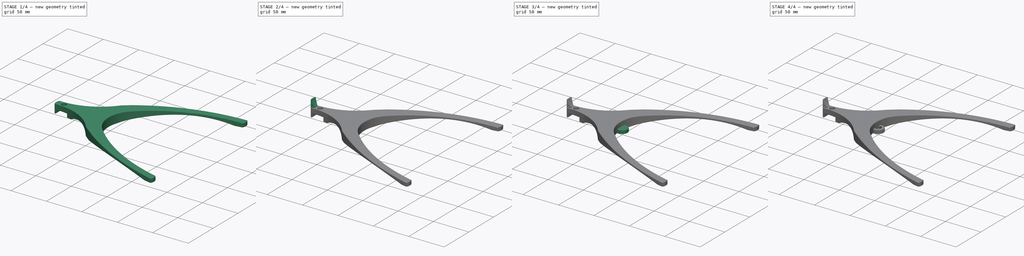
[diagram: build sequence overview — one tinted view per stage of 4, left to right]
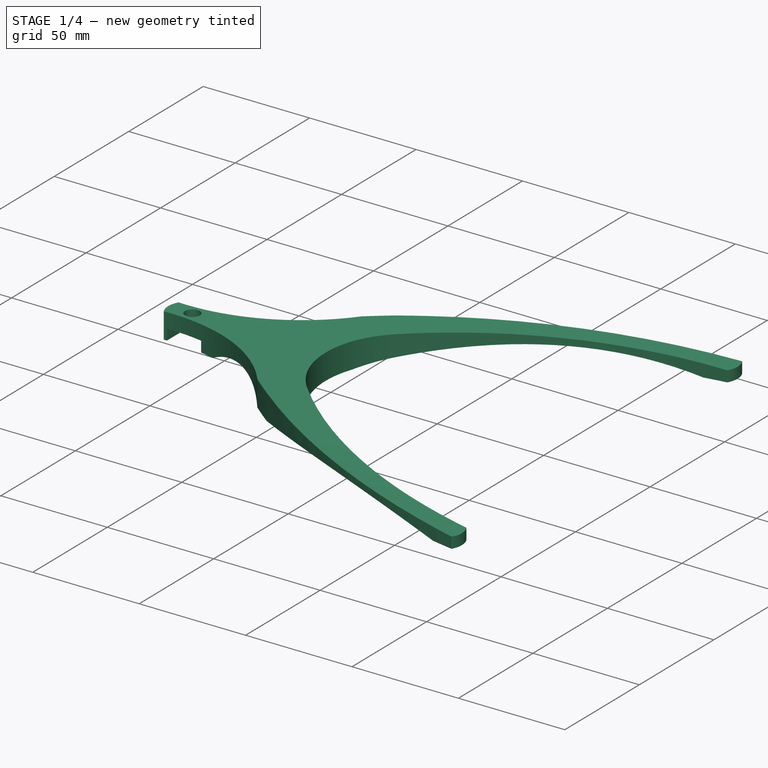
[diagram: stage 1 of 4 — iso view after this stage's code; geometry added in this stage tinted green]
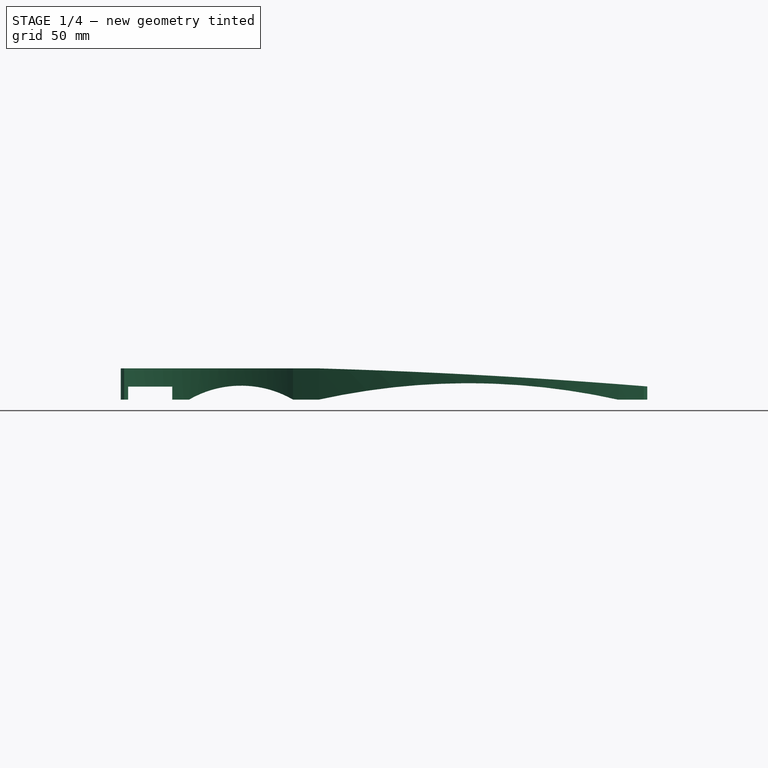
[diagram: stage 1 of 4 — front view after this stage's code; geometry added in this stage tinted green]
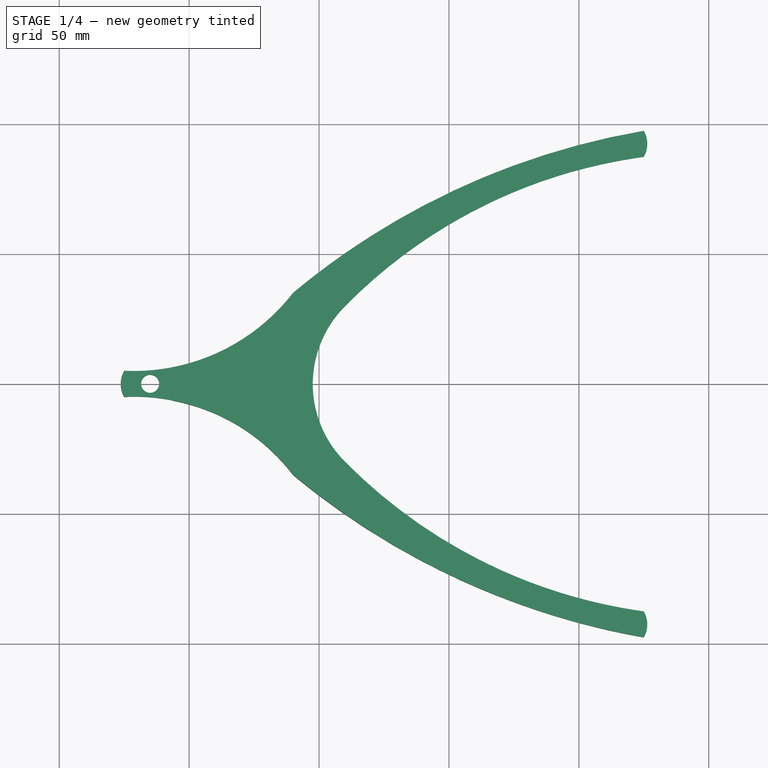
[diagram: stage 1 of 4 — top view after this stage's code; geometry added in this stage tinted green]
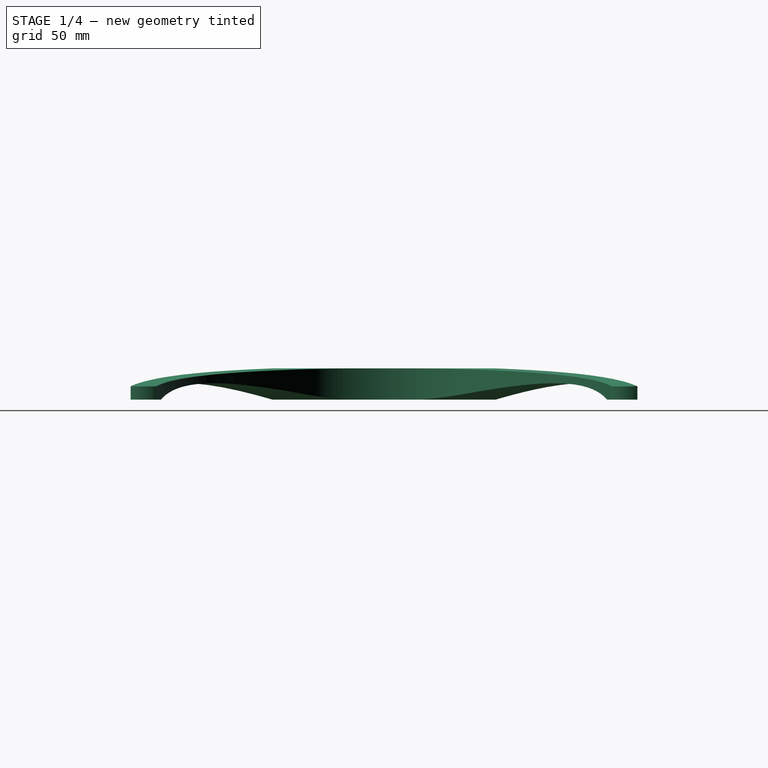
[diagram: stage 1 of 4 — right view after this stage's code; geometry added in this stage tinted green]
FCSTD DOCUMENT  (FreeCAD 0.19R20310 (Git))
Label: adaptalux_base
License: All rights reserved
LicenseURL: http://en.wikipedia.org/wiki/All_rights_reserved
objects: Sketcher::SketchObject×8, PartDesign::Pocket×5, PartDesign::Pad×3, PartDesign::Fillet×2, PartDesign::Body×2, PartDesign::PolarPattern×1, App::Part×1
note: 31 computed .brp shape members not serialized (recipe doc carries the construction recipe); baked Part::Feature solids carry a one-line shape summary decoded from their .brp

FEATURE [Sketcher::SketchObject] Sketch
  MapMode = 5
  Support = -> [XY_Plane]
  sketch-geometry (18):
    g0: GeomPoint X=-75 Y=5 Z=0
    g1: GeomPoint X=-75 Y=-5 Z=0
    g2: GeomPoint X=-10 Y=-35 Z=0
    g3: GeomPoint X=-10 Y=35 Z=0
    g4: GeomPoint X=125 Y=97.5 Z=0
    g5: GeomPoint X=125 Y=-97.5 Z=0
    g6: ArcOfCircle CenterX=-71.3147 CenterY=82.4319 CenterZ=0 NormalX=0 NormalY=0 NormalZ=1 AngleXU=0 Radius=77.5196 StartAngle=4.66483 EndAngle=5.62476
    g7: ArcOfCircle CenterX=174.127 CenterY=-185.663 CenterZ=0 NormalX=0 NormalY=0 NormalZ=1 AngleXU=0 Radius=287.393 StartAngle=1.74258 EndAngle=2.26618
    g8: ArcOfCircle CenterX=-71.3147 CenterY=-82.4319 CenterZ=0 NormalX=0 NormalY=0 NormalZ=1 AngleXU=0 Radius=77.5196 StartAngle=0.658423 EndAngle=1.61835
    g9: ArcOfCircle CenterX=174.127 CenterY=185.663 CenterZ=0 NormalX=0 NormalY=0 NormalZ=1 AngleXU=0 Radius=287.393 StartAngle=4.01701 EndAngle=4.54061
    g10: ArcOfCircle CenterX=-66.3397 CenterY=-9e-16 CenterZ=0 NormalX=0 NormalY=0 NormalZ=1 AngleXU=0 Radius=10 StartAngle=2.61799 EndAngle=3.66519
    g11: ArcOfCircle CenterX=116.34 CenterY=92.5 CenterZ=0 NormalX=0 NormalY=0 NormalZ=1 AngleXU=0 Radius=10 StartAngle=5.75959 EndAngle=6.80678
    g12: ArcOfCircle CenterX=152.196 CenterY=-110.642 CenterZ=0 NormalX=0 NormalY=0 NormalZ=1 AngleXU=0 Radius=200 StartAngle=1.7072 EndAngle=2.36169
    g13: ArcOfCircle CenterX=152.196 CenterY=110.642 CenterZ=0 NormalX=0 NormalY=0 NormalZ=1 AngleXU=0 Radius=200 StartAngle=3.9215 EndAngle=4.57599
    g14: ArcOfCircle CenterX=40 CenterY=3.8e-15 CenterZ=0 NormalX=0 NormalY=0 NormalZ=1 AngleXU=0 Radius=42.4264 StartAngle=2.35619 EndAngle=3.92699
    g15: ArcOfCircle CenterX=116.34 CenterY=-92.5 CenterZ=0 NormalX=0 NormalY=0 NormalZ=1 AngleXU=0 Radius=10 StartAngle=5.75959 EndAngle=6.80678
    g16: Circle CenterX=-65 CenterY=0 CenterZ=0 NormalX=0 NormalY=0 NormalZ=1 AngleXU=0 Radius=3.475
    g17: GeomPoint X=-76.3397 Y=0 Z=0
  constraints (47):
    c: Symmetric(g0,g1,g-1)
    c: Symmetric(g2,g3,g-1)
    c: Symmetric(g4,g5,g-1)
    c: DistanceY(g5,g4) = 195
    c: DistanceY(g2,g3) = 70
    c: DistanceY(g1,g0) = 10
    c: DistanceX(g0,g3) = 65
    c: Coincident(g6,g0)
    c: Coincident(g6,g3)
    c: Coincident(g7,g3)
    c: Coincident(g7,g4)
    c: Angle(g6) = 0.959931
    c: Angle(g7) = 0.523599
    c: DistanceX(g0,g4) = 200
    c: Angle(g8) = 0.959931
    c: Angle(g9) = 0.523599
    c: Coincident(g10,g0)
    c: Coincident(g10,g1)
    c: Angle(g10) = 1.0472
    c: Coincident(g11,g4)
    c: Vertical(g11,g4)
    c: DistanceY(g11,g4) = 10
    c: Coincident(g12,g11)
    c: DistanceX(g-1,g12) = 10
    c: Symmetric(g13,g12,g-1)
    c: Coincident(g14,g12)
    c: Coincident(g14,g13)
    c: Angle(g14) = 1.5708
    c: DistanceY(g13,g12) = 60
    c: Angle(g11) = 1.0472
    c: Coincident(g1,g8)
    c: Coincident(g8,g2)
    c: Coincident(g8,g9)
    c: Coincident(g9,g5)
    c: Radius(g12) = 200
    c: Equal(g12,g13)
    c: Vertical(g13,g5)
    c: DistanceY(g5,g13) = 10
    c: Coincident(g15,g13)
    c: Coincident(g15,g5)
    c: Equal(g11,g15)
    c: DistanceX(g0,g-1) = 75
    c: PointOnObject(g17,g10)
    c: PointOnObject(g17,g-1)
    c: PointOnObject(g16,g-1)
    c: DistanceX(g16,g-1) = 65
    c: Diameter(g16) = 6.95
FEATURE [PartDesign::Pad] Pad
  Length = 12
  Length2 = 100
  Profile = -> Sketch
  Type = 0
FEATURE [Sketcher::SketchObject] Sketch001
  MapMode = 5
  Placement = pos=(0,0,0) rot=(1,0,0;1.5708rad)
  Support = -> [XZ_Plane]
  expr: Constraints[11] = 65 - 17 / 2
  sketch-geometry (4):
    g0: LineSegment StartX=-73.5 StartY=0 StartZ=0 EndX=-73.5 EndY=5 EndZ=0
    g1: LineSegment StartX=-56.5 StartY=5 StartZ=0 EndX=-56.5 EndY=0 EndZ=0
    g2: LineSegment StartX=-56.5 StartY=0 StartZ=0 EndX=-73.5 EndY=0 EndZ=0
    g3: LineSegment StartX=-73.5 StartY=5 StartZ=0 EndX=-56.5 EndY=5 EndZ=0
  constraints (12):
    c: Coincident(g1,g2)
    c: Coincident(g2,g0)
    c: Horizontal(g2)
    c: Vertical(g0)
    c: Equal(g0,g1)
    c: DistanceY(g0,g0) = 5
    c: PointOnObject(g1,g-1)
    c: DistanceX(g0,g1) = 17
    c: Coincident(g3,g1)
    c: Coincident(g3,g0)
    c: Equal(g2,g3)
    c: DistanceX(g1,g-1) = 56.5
FEATURE [PartDesign::Pocket] Pocket
  BaseFeature = -> Pad
  Length = 5
  Length2 = 100
  Midplane = true
  Profile = -> Sketch001
  Type = 1
FEATURE [Sketcher::SketchObject] Sketch002
  MapMode = 5
  Placement = pos=(0,0,0) rot=(1,0,0;1.5708rad)
  Support = -> [XZ_Plane]
  sketch-geometry (7):
    g0: ArcOfCircle CenterX=57.5 CenterY=-259.366 CenterZ=0 NormalX=0 NormalY=0 NormalZ=1 AngleXU=0 Radius=265.663 StartAngle=1.35263 EndAngle=1.78896
    g1: LineSegment StartX=2.84e-14 StartY=-5.68e-14 StartZ=0 EndX=115 EndY=-5.68e-14 EndZ=0
    g2: LineSegment StartX=127 StartY=5 StartZ=0 EndX=127 EndY=12 EndZ=0
    g3: ArcOfCircle CenterX=-30 CenterY=-34.641 CenterZ=0 NormalX=0 NormalY=0 NormalZ=1 AngleXU=0 Radius=40 StartAngle=1.0472 EndAngle=2.0944
    g4: LineSegment StartX=-50 StartY=0 StartZ=0 EndX=-10 EndY=-7.1e-15 EndZ=0
    g5: LineSegment StartX=4.26e-14 StartY=12 StartZ=0 EndX=127 EndY=12 EndZ=0
    g6: ArcOfCircle CenterX=-70.1596 CenterY=-2416.47 CenterZ=0 NormalX=0 NormalY=0 NormalZ=1 AngleXU=0 Radius=2429.48 StartAngle=1.48955 EndAngle=1.54191
  constraints (23):
    c: Coincident(g0,g-1)
    c: PointOnObject(g0,g-1)
    c: DistanceX(g0,g0) = 115
    c: Coincident(g1,g0)
    c: Coincident(g1,g0)
    c: DistanceX(g0,g2) = 12
    c: DistanceY(g0,g2) = 5
    c: Vertical(g2)
    c: PointOnObject(g3,g-1)
    c: PointOnObject(g3,g-1)
    c: DistanceX(g3,g0) = 10
    c: DistanceX(g3,g3) = 40
    c: Angle(g3) = 1.0472
    c: Coincident(g4,g3)
    c: Coincident(g4,g3)
    c: Coincident(g5,g2)
    c: Horizontal(g5)
    c: Coincident(g6,g2)
    c: DistanceY(g0,g6) = 12
    c: Coincident(g5,g6)
    c: Angle(g6) = 0.0523599
    c: PointOnObject(g5,g-2)
    c: Angle(g0) = 0.436332
FEATURE [PartDesign::Pocket] Pocket001
  BaseFeature = -> Pocket
  Length = 5
  Length2 = 100
  Midplane = true
  Profile = -> Sketch002
  Type = 1
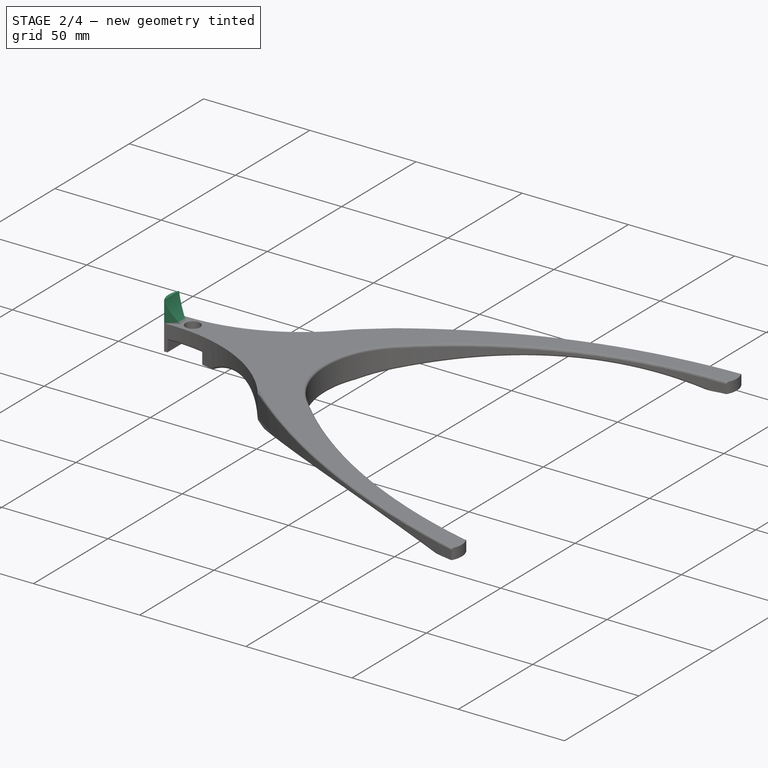
[diagram: stage 2 of 4 — iso view after this stage's code; geometry added in this stage tinted green]
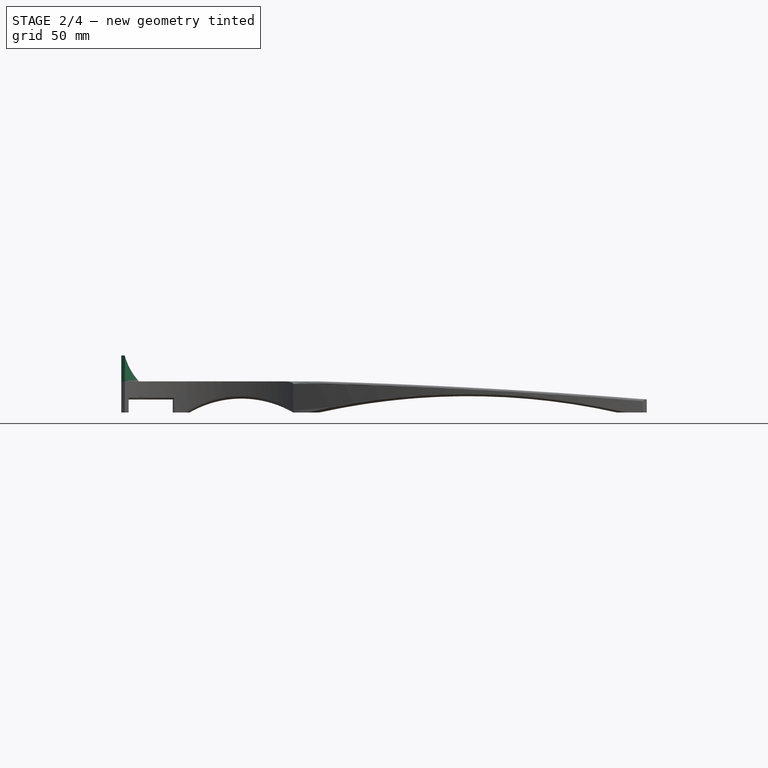
[diagram: stage 2 of 4 — front view after this stage's code; geometry added in this stage tinted green]
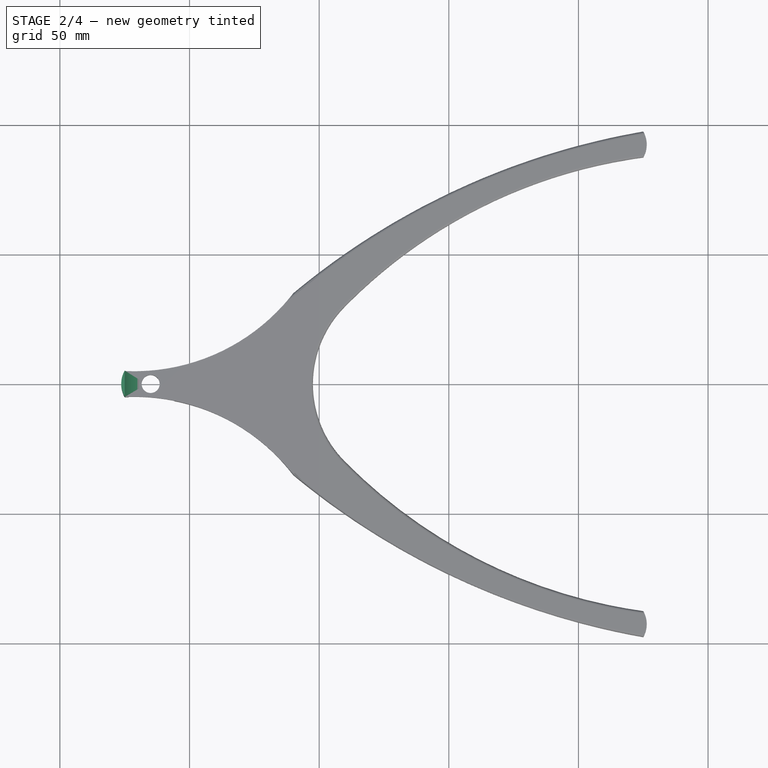
[diagram: stage 2 of 4 — top view after this stage's code; geometry added in this stage tinted green]
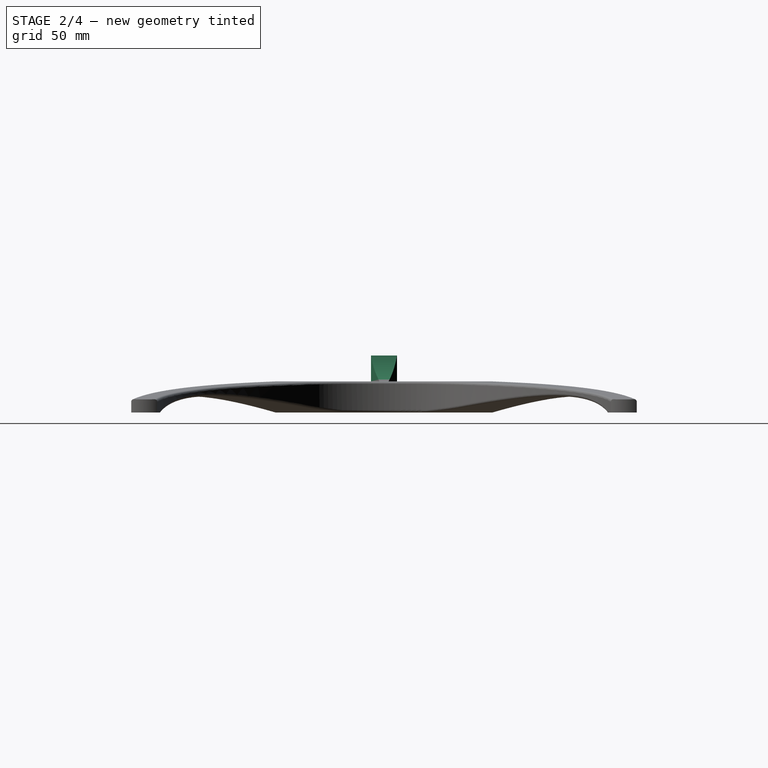
[diagram: stage 2 of 4 — right view after this stage's code; geometry added in this stage tinted green]
FEATURE [PartDesign::Body] Body005
  Group = -> [Sketch017,Pad010,Fillet004,Sketch018,Pocket003,Sketch019,Pocket004,PolarPattern002]
  Origin = -> Origin008
  Tip = -> PolarPattern002
FEATURE [App::Part] Part002  label="tapa_tornillo"
  Group = -> [Body005]
  Origin = -> Origin007
  Placement = pos=(50,0,0) rot=(0,0,1;0rad)
FEATURE [Sketcher::SketchObject] Sketch020
  ExternalGeometry = -> [Pocket001]
  MapMode = 5
  Placement = pos=(0,0,12) rot=(0,0,1;0rad)
  Support = -> [Pocket001]
  sketch-geometry (4):
    g0: LineSegment StartX=-75 StartY=5 StartZ=0 EndX=-69.5 EndY=1.75 EndZ=0
    g1: LineSegment StartX=-69.5 StartY=1.75 StartZ=0 EndX=-69.5 EndY=-1.75 EndZ=0
    g2: LineSegment StartX=-69.5 StartY=-1.75 StartZ=0 EndX=-75 EndY=-5 EndZ=0
    g3: ArcOfCircle CenterX=-66.3397 CenterY=-3.238e-13 CenterZ=0 NormalX=0 NormalY=0 NormalZ=1 AngleXU=0 Radius=10 StartAngle=2.61799 EndAngle=3.66519
  constraints (10):
    c: Coincident(g0,g1)
    c: Coincident(g1,g2)
    c: Symmetric(g1,g0,g-1)
    c: DistanceY(g1,g1) = 3.5
    c: DistanceX(g1,g-1) = 69.5
    c: Angle(g3) = 1.0472
    c: Coincident(g3,g2)
    c: Coincident(g2,g-3)
    c: Coincident(g3,g-4)
    c: Coincident(g3,g0)
FEATURE [Sketcher::SketchObject] Sketch021
  MapMode = 5
  Placement = pos=(0,0,0) rot=(1,0,0;1.5708rad)
  Support = -> [XZ_Plane]
  sketch-geometry (3):
    g0: ArcOfCircle CenterX=-51.4235 CenterY=28.4546 CenterZ=0 NormalX=0 NormalY=0 NormalZ=1 AngleXU=0 Radius=24.4441 StartAngle=3.40882 EndAngle=3.88006
    g1: LineSegment StartX=-75 StartY=22 StartZ=0 EndX=-69.5 EndY=22 EndZ=0
    g2: LineSegment StartX=-69.5 StartY=22 StartZ=0 EndX=-69.5 EndY=12 EndZ=0
  constraints (4):
    c: Angle(g0) = 0.471239
    c: Coincident(g0,g1)
    c: Coincident(g1,g2)
    c: Coincident(g2,g0)
FEATURE [PartDesign::Pad] Pad011
  BaseFeature = -> Pocket001
  Length = 10
  Length2 = 100
  Profile = -> Sketch020
  Type = 0
FEATURE [PartDesign::Pocket] Pocket005
  BaseFeature = -> Pad011
  Length = 5
  Length2 = 100
  Midplane = true
  Profile = -> Sketch021
  Type = 1
FEATURE [PartDesign::Fillet] Fillet
  Base = -> Pocket005 [Edge54,Edge46,Edge73,Edge78,Edge62,Edge42,Edge12,Edge1,Edge39,Edge67,Edge3,Edge4,Edge16,Edge18,Edge21]
  BaseFeature = -> Pocket005
  Radius = 1
  SupportTransform = true
FEATURE [PartDesign::Body] Body
  Group = -> [Sketch,Pad,Sketch001,Pocket,Sketch002,Pocket001,Pad011,Sketch020,Sketch021,Pocket005,Fillet]
  Origin = -> Origin
  Tip = -> Fillet
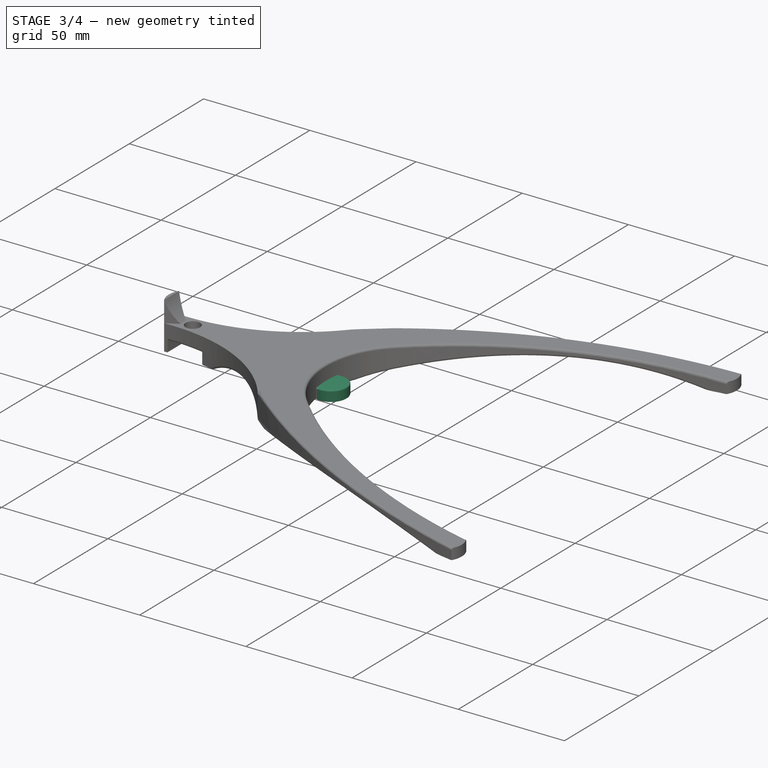
[diagram: stage 3 of 4 — iso view after this stage's code; geometry added in this stage tinted green]
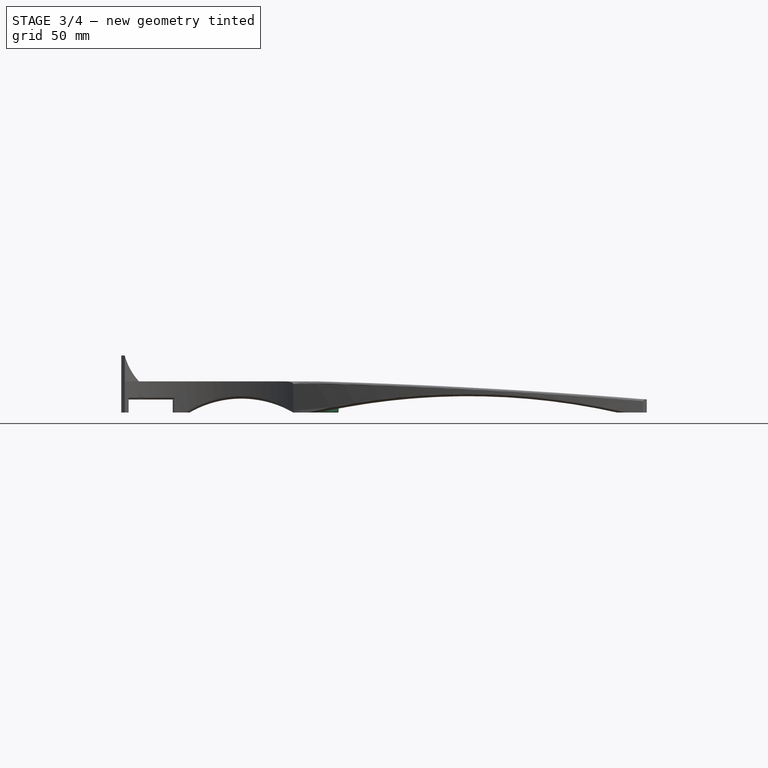
[diagram: stage 3 of 4 — front view after this stage's code; geometry added in this stage tinted green]
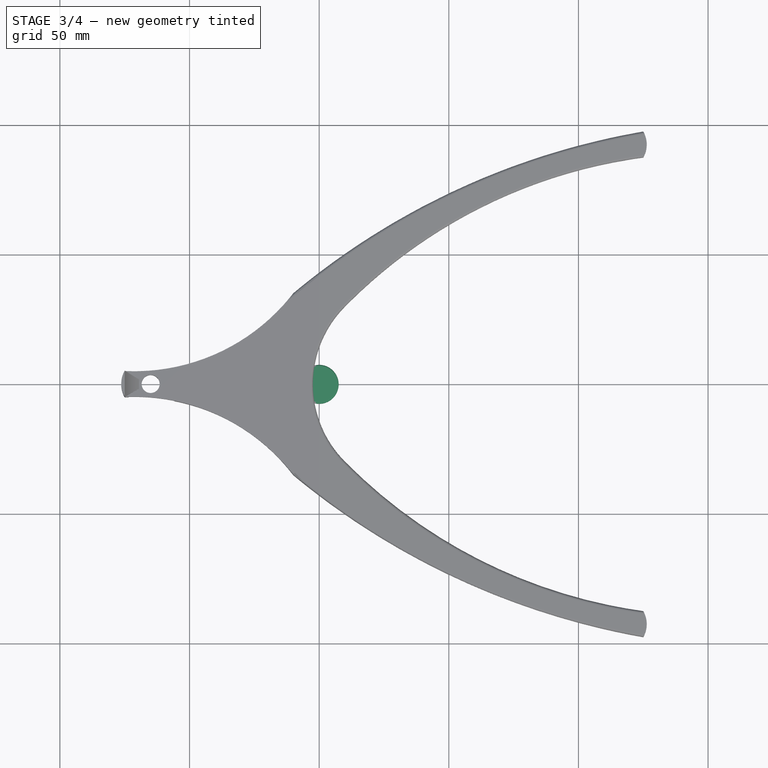
[diagram: stage 3 of 4 — top view after this stage's code; geometry added in this stage tinted green]
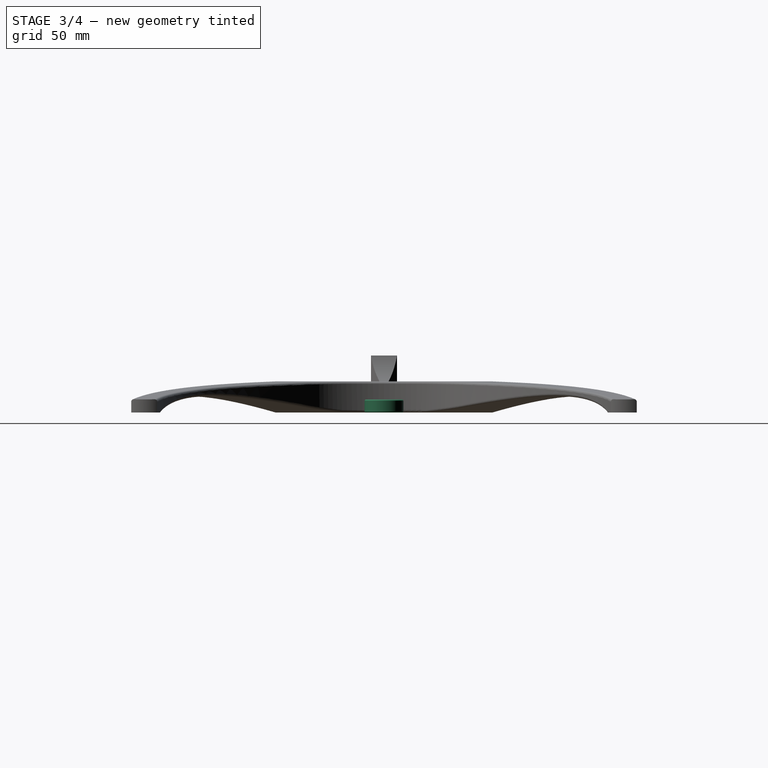
[diagram: stage 3 of 4 — right view after this stage's code; geometry added in this stage tinted green]
FEATURE [Sketcher::SketchObject] Sketch017
  MapMode = 5
  Support = -> [XY_Plane009]
  expr: Constraints[0] = 7.5
  sketch-geometry (1):
    g0: Circle CenterX=0 CenterY=0 CenterZ=0 NormalX=0 NormalY=0 NormalZ=1 AngleXU=0 Radius=7.5
  constraints (2):
    c: Radius(g0) = 7.5
    c: Coincident(g0,g-1)
FEATURE [PartDesign::Pad] Pad010
  AllowMultiFace = false
  Length = 5
  Length2 = 100
  Profile = -> Sketch017
  Type = 0
FEATURE [Sketcher::SketchObject] Sketch018
  MapMode = 5
  Placement = pos=(0,0,5) rot=(0,0,1;0rad)
  Support = -> [Pad010]
  sketch-geometry (7):
    g0: LineSegment StartX=3.89711 StartY=-2.25 StartZ=0 EndX=3.89711 EndY=2.25 EndZ=0
    g1: LineSegment StartX=3.89711 StartY=2.25 StartZ=0 EndX=0 EndY=4.5 EndZ=0
    g2: LineSegment StartX=0 StartY=4.5 StartZ=0 EndX=-3.89711 EndY=2.25 EndZ=0
    g3: LineSegment StartX=-3.89711 StartY=2.25 StartZ=0 EndX=-3.89711 EndY=-2.25 EndZ=0
    g4: LineSegment StartX=-3.89711 StartY=-2.25 StartZ=0 EndX=2.879e-12 EndY=-4.5 EndZ=0
    g5: LineSegment StartX=2.879e-12 StartY=-4.5 StartZ=0 EndX=3.89711 EndY=-2.25 EndZ=0
    g6: Circle [constr] CenterX=0 CenterY=0 CenterZ=0 NormalX=0 NormalY=0 NormalZ=1 AngleXU=0 Radius=4.5
  constraints (16):
    c: Coincident(g0,g1)
    c: Coincident(g1,g2)
    c: Coincident(g2,g3)
    c: Coincident(g3,g4)
    c: Coincident(g4,g5)
    c: Coincident(g5,g0)
    c: Equal(g0, g1-g5) x5
    c: PointOnObject(g0,g6)
    c: PointOnObject(g1,g6)
    c: PointOnObject(g2,g6)
    c: PointOnObject(g3,g6)
    c: PointOnObject(g4,g6)
    c: PointOnObject(g5,g6)
    c: Coincident(g6,g-1)
    c: Diameter(g6) = 9
    c: PointOnObject(g1,g-2)
FEATURE [PartDesign::Fillet] Fillet004
  Base = -> Pad010 [Edge2,Edge3]
  BaseFeature = -> Pad010
  Radius = 0.5
  SupportTransform = false
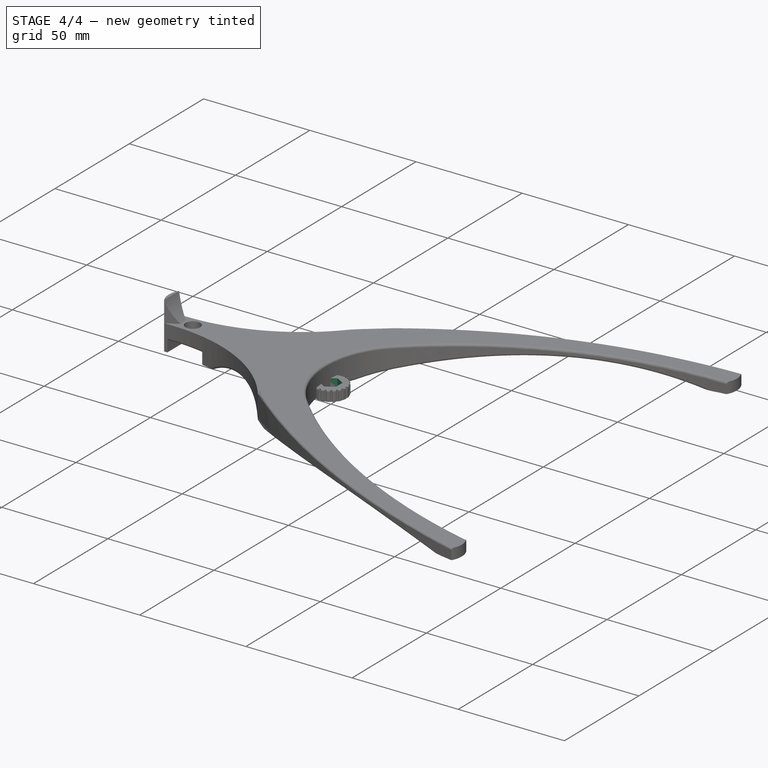
[diagram: stage 4 of 4 — iso view after this stage's code; geometry added in this stage tinted green]
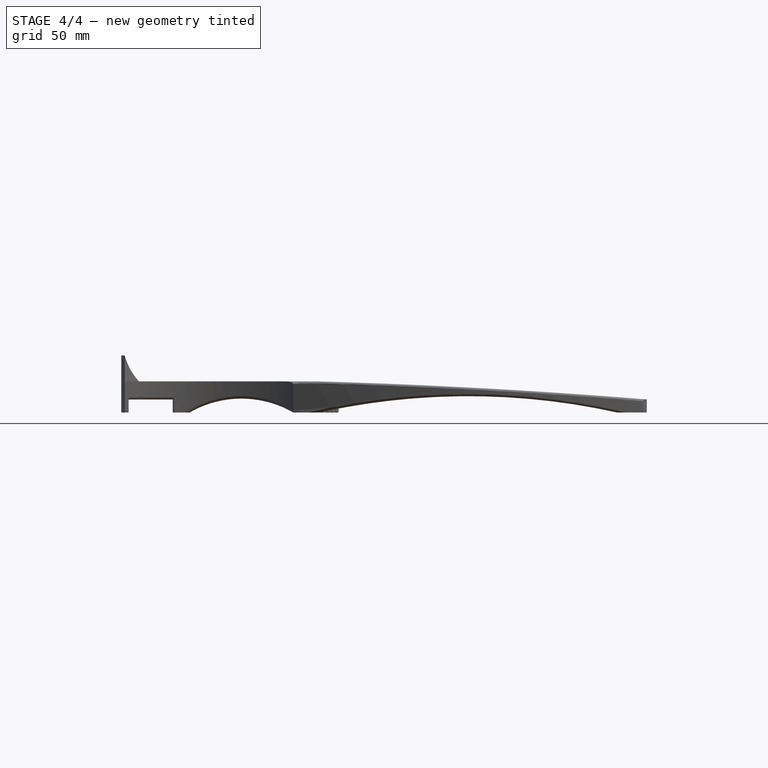
[diagram: stage 4 of 4 — front view after this stage's code; geometry added in this stage tinted green]
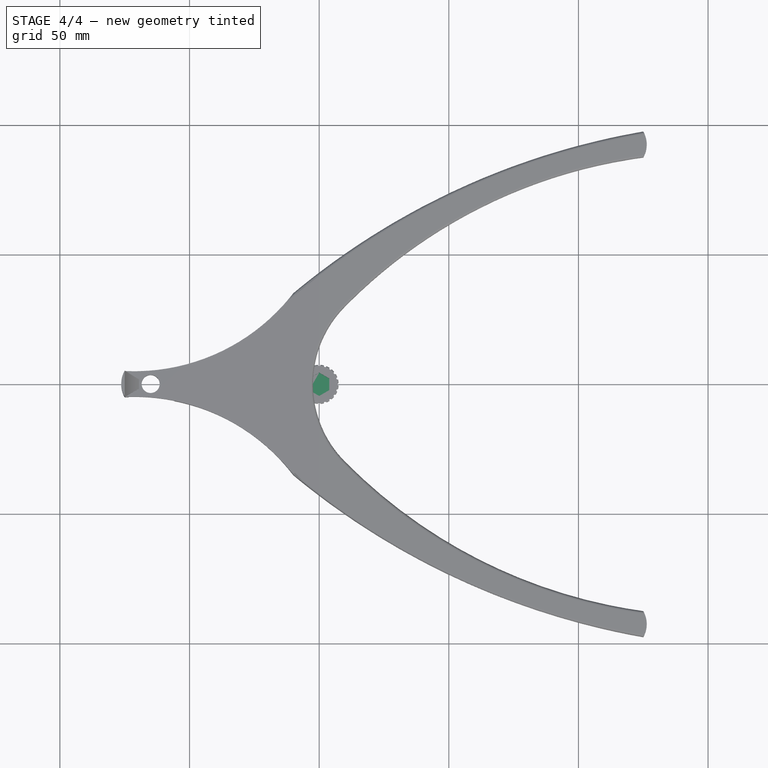
[diagram: stage 4 of 4 — top view after this stage's code; geometry added in this stage tinted green]
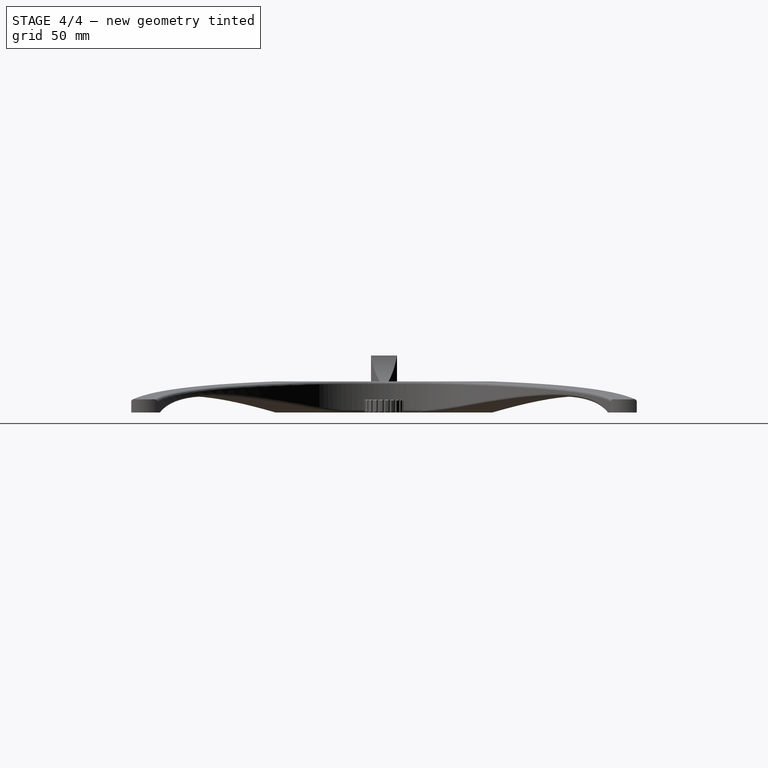
[diagram: stage 4 of 4 — right view after this stage's code; geometry added in this stage tinted green]
FEATURE [PartDesign::Pocket] Pocket003
  AllowMultiFace = false
  BaseFeature = -> Fillet004
  Length = 4
  Length2 = 100
  Profile = -> Sketch018
  Type = 0
FEATURE [Sketcher::SketchObject] Sketch019
  MapMode = 5
  Support = -> [XY_Plane009]
  sketch-geometry (1):
    g0: Circle CenterX=7.5 CenterY=0 CenterZ=0 NormalX=0 NormalY=0 NormalZ=1 AngleXU=0 Radius=0.5
  constraints (3):
    c: PointOnObject(g0,g-1)
    c: Diameter(g0) = 1
    c: DistanceX(g-1,g0) = 7.5
FEATURE [PartDesign::Pocket] Pocket004
  AllowMultiFace = false
  BaseFeature = -> Pocket003
  Length = 5
  Length2 = 100
  Profile = -> Sketch019
  Reversed = true
  Type = 1
FEATURE [PartDesign::PolarPattern] PolarPattern002
  Angle = 360
  Axis = -> Sketch019 [N_Axis]
  BaseFeature = -> Pocket004
  Occurrences = 20
  Originals = -> [Pocket004]
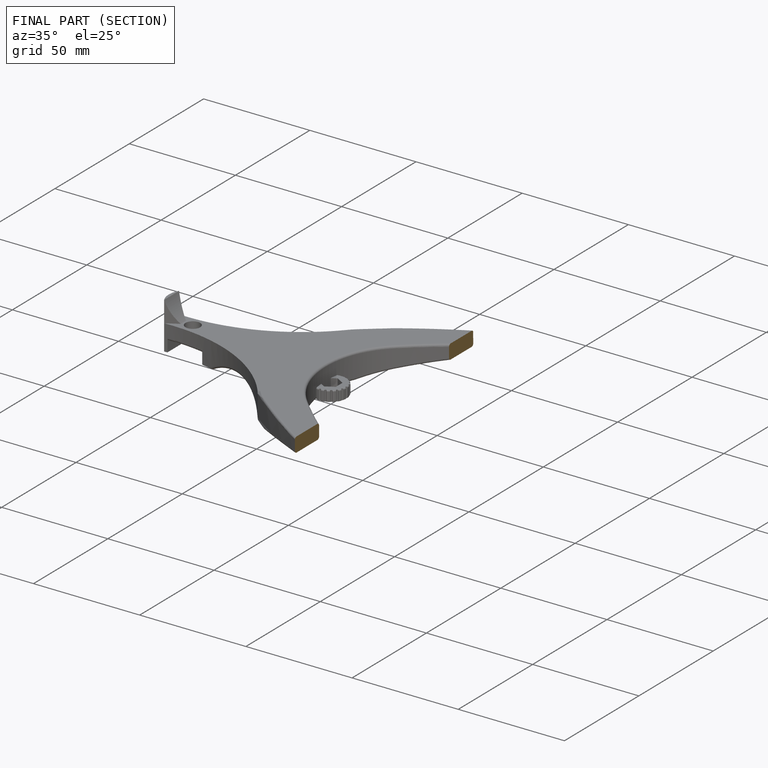
[diagram: finished part — half-section view (interior)]
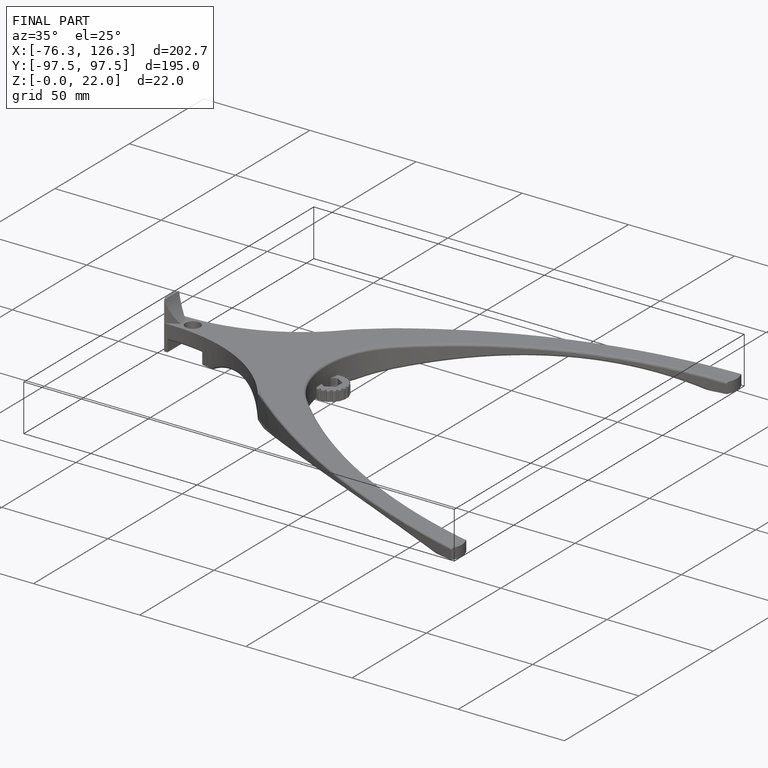
[diagram: finished part — iso view with bounding-box wireframe]
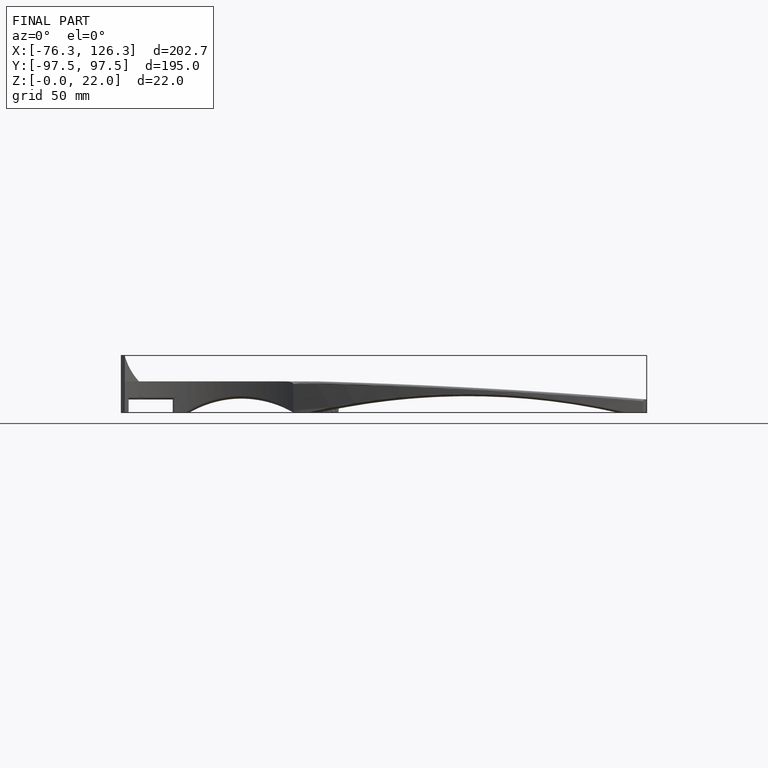
[diagram: finished part — front view with bounding-box wireframe]
